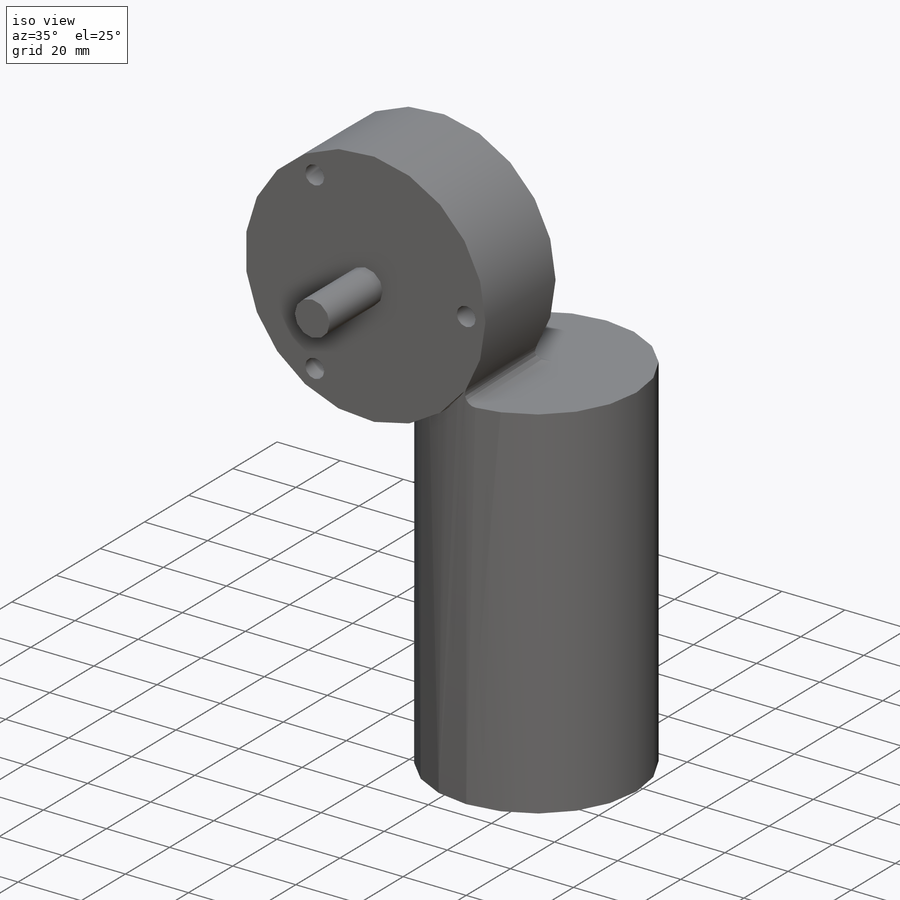
[diagram: iso view]
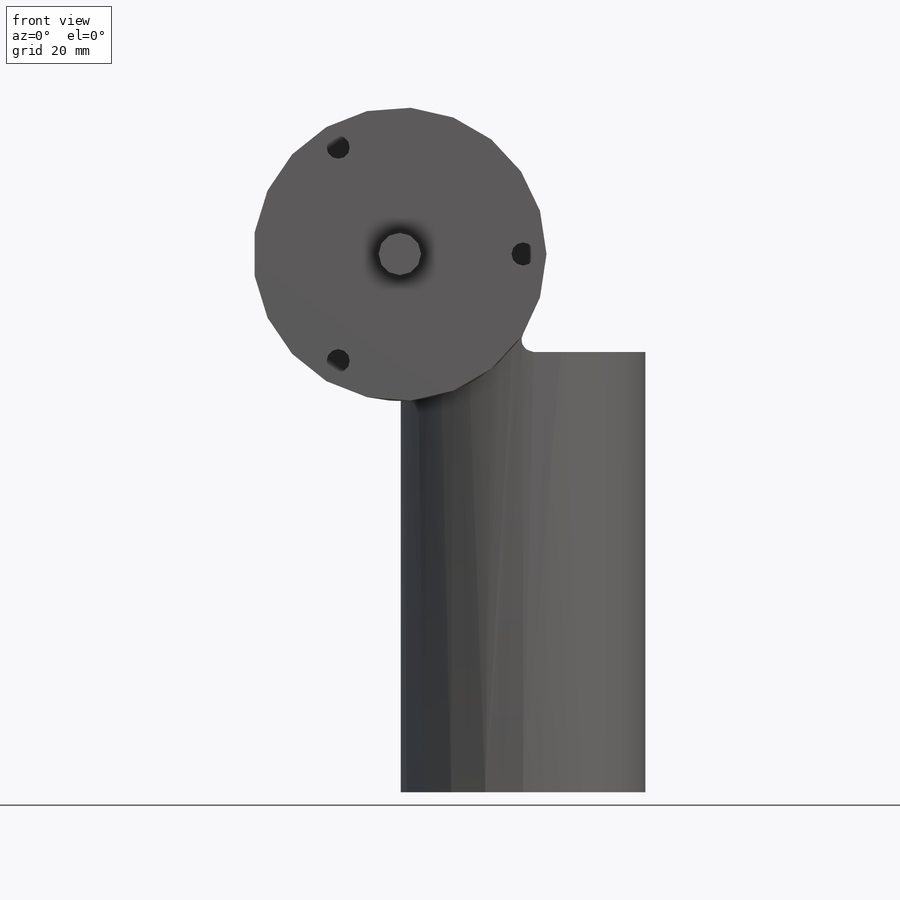
[diagram: front view]
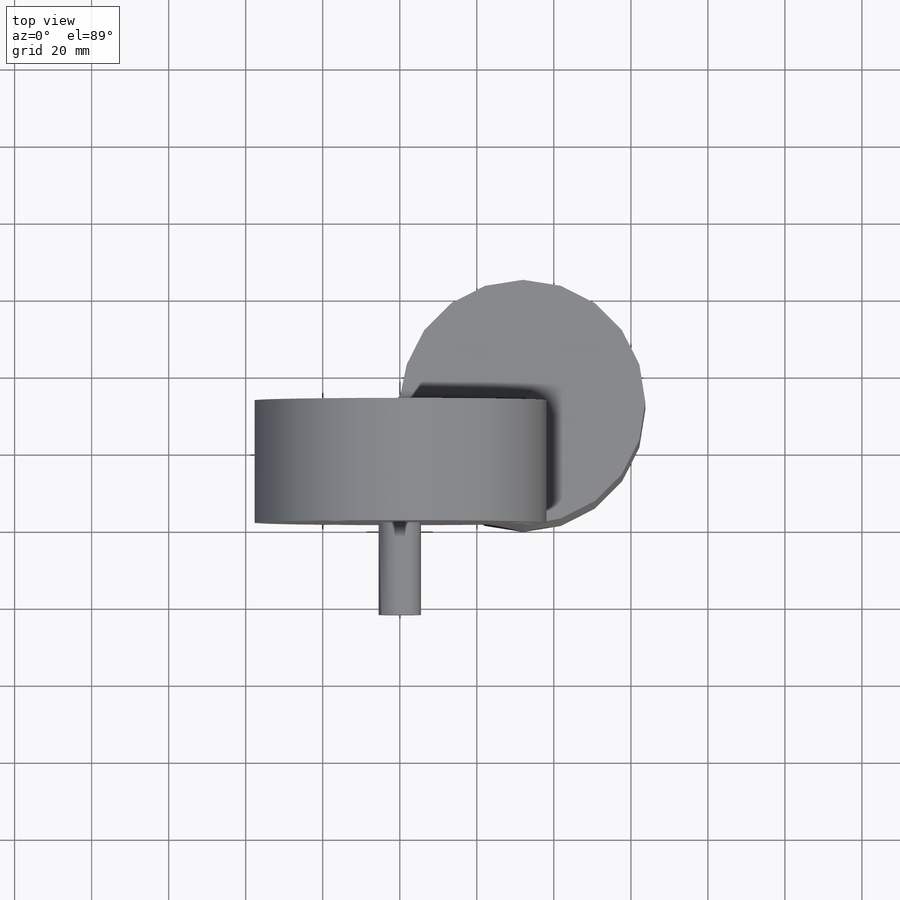
[diagram: top view]
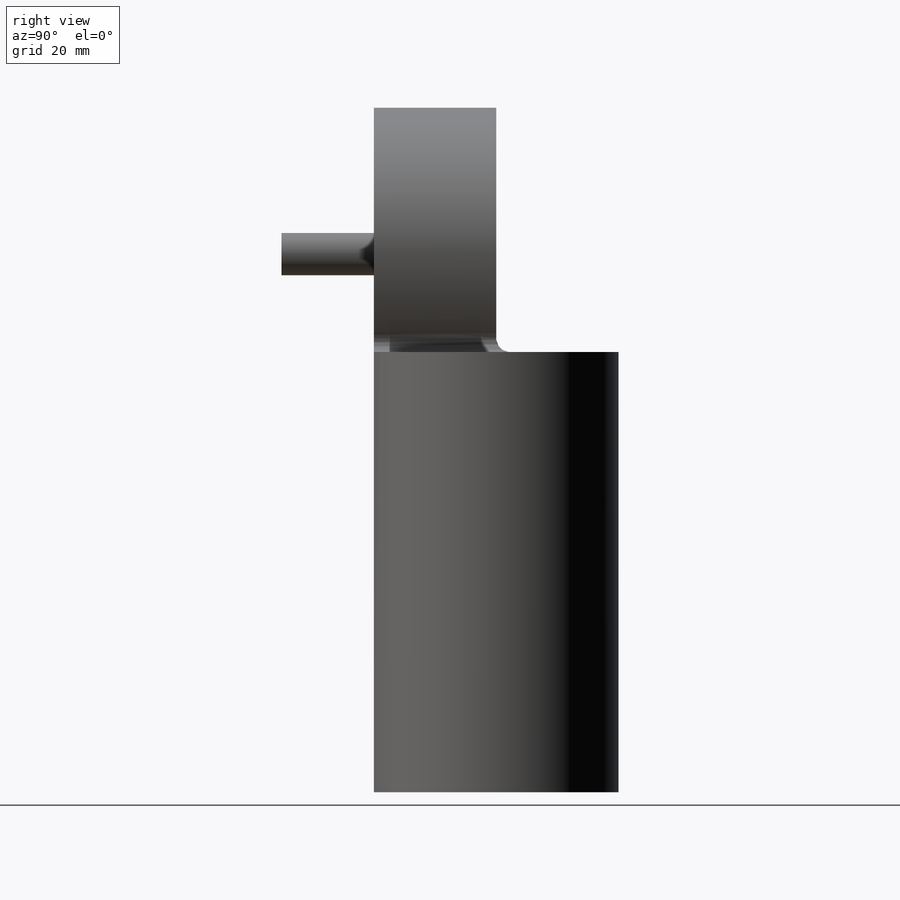
[diagram: right view]
SOLIDWORKS PART (.sldprt)
format: sldprt  version: not decoded by parser v0  size: 340,992 bytes
history: native  units: mm
features: sketch x5, extrude x3, plane x3, material x1, fillet x1, cut_extrude x1 (+13 scaffold rows collapsed)
feature tree (27):
  scaffold x13  (default folders/planes/origin — collapsed)
  material  "Material <not specified>"
  sketch  "Sketch1"  dims[D1=76.2mm]
  extrude  "Extrude1"  Depth=31.75mm
  plane  "Plane1"
  sketch  "Sketch2"  dims[D2=63.5mm D1=32.004mm]
  extrude  "Extrude2"  Depth=101.6mm
  fillet  "Fillet1"  Radius=3.175mm
  sketch  "Sketch3"  dims[c1.D2=64.0mm c1.D3=6.0mm c1.D1=~46.665468mm c2.D2=~10.887171mm c2.D3=6.1mm c2.D1=120.0deg]
  cut_extrude  "Cut-Extrude1"  Depth=12.7mm
  sketch  "Sketch4"  dims[D1=~28.344924mm]
  extrude  "Extrude3"  Depth=24mm
  sketch  "Sketch6"  dims[c1.D1=38.1mm c2.D1=20.0deg]
  plane  "vertical"
  plane  "Plane2"  Offset=20.574mm
decode coverage: 10 of 10 modeling features carry decoded parameters
note: ~ marks probable driven/reference dimensions
note: suppression state not decoded; provenance and decode notes live in map.json
